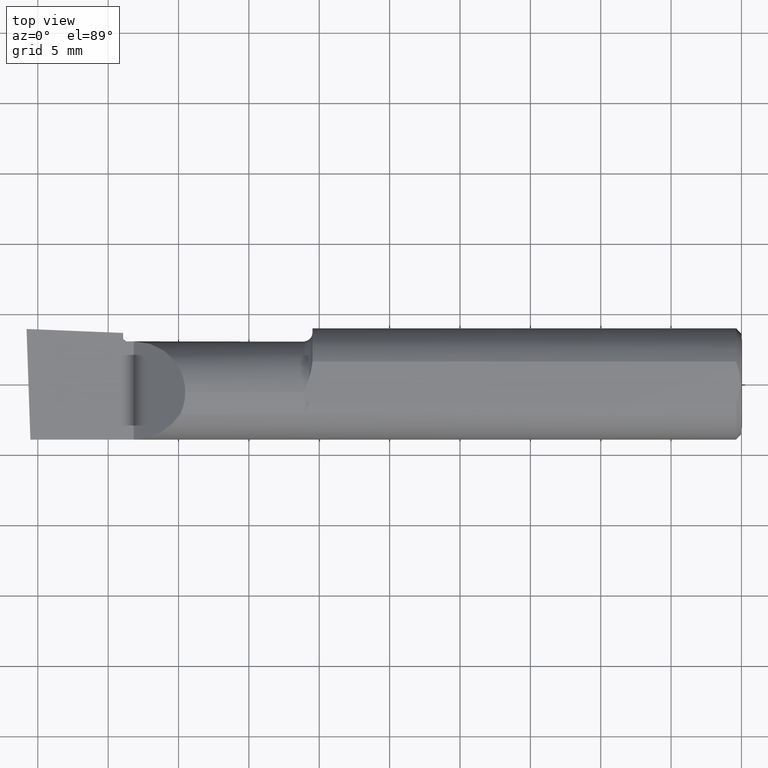
[diagram: clean part render]
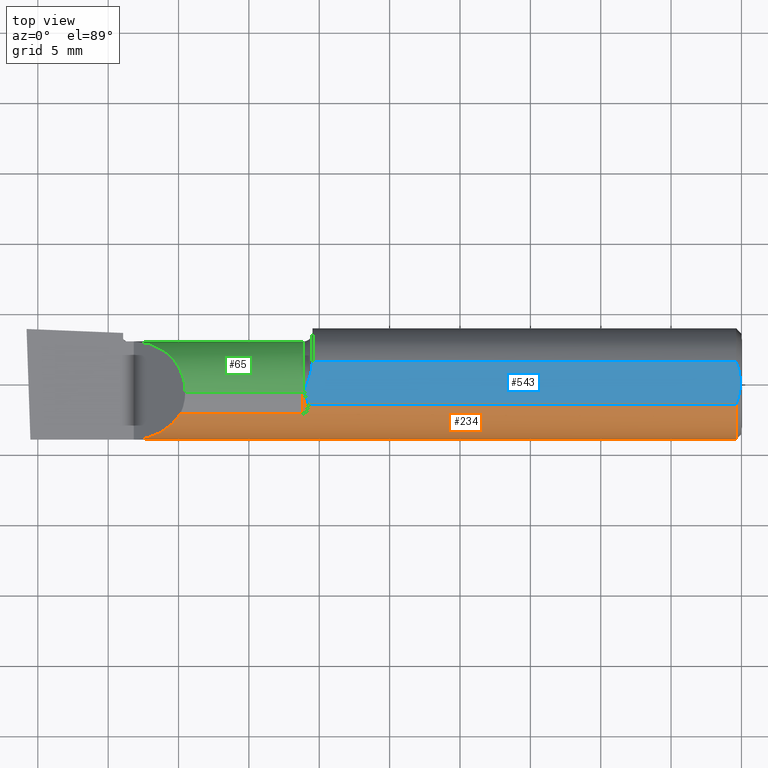
[diagram: same view with three faces highlighted in distinct colors, each labeled with its STEP entity id]
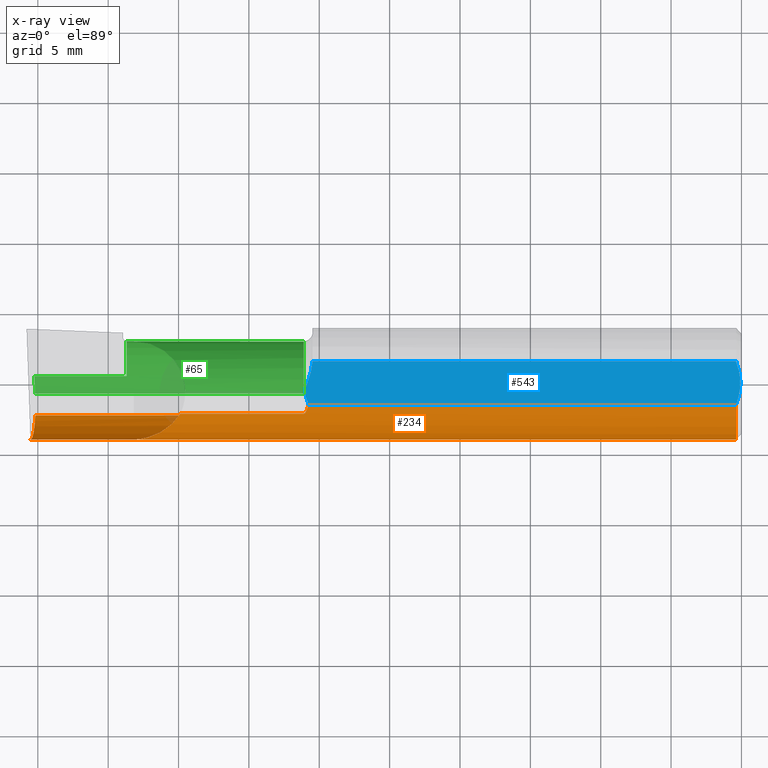
[diagram: x-ray of the same camera — body ghosted, the three highlighted faces saturated]
A machine part, top view with three faces highlighted in distinct colors.
The next image is the same camera in x-ray (body ghosted, the three faces saturated) — at least one of them is partly hidden behind the body in this view.
Their STEP definitions:

[orange] entity #234 — the highlighted cylindrical surface (partial cylindrical patch) has radius 3.9649 mm, axis along (1, -0, -0).
#1 = VERTEX_POINT ( 'NONE', #161 ) ;
#7 = EDGE_CURVE ( 'NONE', #64, #1, #43, .T. ) ;
#10 = CARTESIAN_POINT ( 'NONE',  ( -0.01500000000000024925, 0.000000000000000000, 0.000000000000000000 ) ) ;
#12 = CARTESIAN_POINT ( 'NONE',  ( -1.989266190342418916, -0.1561000000000000165, 3.826894855694925850E-18 ) ) ;
#19 = CIRCLE ( 'NONE', #114, 0.1560999999999999888 ) ;
#31 = CARTESIAN_POINT ( 'NONE',  ( -1.977743596163801021, -0.1305938407426050218, -0.1009826174484538680 ) ) ;
#38 =( BOUNDED_CURVE ( )  B_SPLINE_CURVE ( 3, ( #12, #472, #31, #329 ),
 .UNSPECIFIED., .F., .T. ) 
 B_SPLINE_CURVE_WITH_KNOTS ( ( 4, 4 ),
 ( 4.987330662103038215, 5.976951217326482713 ),
 .UNSPECIFIED. ) 
 CURVE ( )  GEOMETRIC_REPRESENTATION_ITEM ( )  RATIONAL_B_SPLINE_CURVE ( ( 1.000000000000000000, 0.9200392120919973493, 0.9200392120919973493, 1.000000000000000000 ) ) 
 REPRESENTATION_ITEM ( '' )  );
#41 = CARTESIAN_POINT ( 'NONE',  ( -1.219310887745682415, -0.08198244806377583127, -0.1328448627315362007 ) ) ;
#43 = B_SPLINE_CURVE_WITH_KNOTS ( 'NONE', 3,
 ( #498, #396, #85, #324, #41, #665, #157, #290, #621, #174, #577, #233 ),
 .UNSPECIFIED., .F., .F.,
 ( 4, 2, 2, 2, 2, 4 ),
 ( 1.966861314596262993E-07, 0.0001139043861855364159, 0.0002276120862396131903, 0.0004550274863477684196, 0.0009098582865640782820, 0.001819519886996695621 ),
 .UNSPECIFIED. ) ;
#48 = VERTEX_POINT ( 'NONE', #165 ) ;
#56 = AXIS2_PLACEMENT_3D ( 'NONE', #245, #539, #592 ) ;
#57 = VECTOR ( 'NONE', #340, 39.37007874015748143 ) ;
#64 = VERTEX_POINT ( 'NONE', #624 ) ;
#71 = EDGE_LOOP ( 'NONE', ( #376, #611, #330, #710, #335, #385, #166, #228, #291, #615, #159 ) ) ;
#76 = CARTESIAN_POINT ( 'NONE',  ( -1.224999999999999867, -0.08569999999999945717, 0.1304711462354803397 ) ) ;
#77 = CARTESIAN_POINT ( 'NONE',  ( -1.989266190342418916, -0.1561000000000000165, 3.826894855694925850E-18 ) ) ;
#79 = CARTESIAN_POINT ( 'NONE',  ( -1.220308733175471394, -0.08325729668116119142, 0.1320471792325036975 ) ) ;
#85 = CARTESIAN_POINT ( 'NONE',  ( -1.222162220462625459, -0.08489276752862864872, -0.1310023188550718254 ) ) ;
#93 = CARTESIAN_POINT ( 'NONE',  ( -0.01500000000000024925, -0.06001999666777732556, 0.1440999999999999781 ) ) ;
#109 = DIRECTION ( 'NONE',  ( 0.000000000000000000, 0.000000000000000000, 1.000000000000000000 ) ) ;
#113 = CARTESIAN_POINT ( 'NONE',  ( -1.556000000000000050, -0.1560999999999999888, 3.826894855694925850E-18 ) ) ;
#114 = AXIS2_PLACEMENT_3D ( 'NONE', #10, #516, #109 ) ;
#115 =( BOUNDED_CURVE ( )  B_SPLINE_CURVE ( 3, ( #719, #383, #434, #654 ),
 .UNSPECIFIED., .F., .T. ) 
 B_SPLINE_CURVE_WITH_KNOTS ( ( 4, 4 ),
 ( 0.5811757715714150896, 1.570796326794896558 ),
 .UNSPECIFIED. ) 
 CURVE ( )  GEOMETRIC_REPRESENTATION_ITEM ( )  RATIONAL_B_SPLINE_CURVE ( ( 1.000000000000000000, 0.9200392120919915762, 0.9200392120919915762, 1.000000000000000000 ) ) 
 REPRESENTATION_ITEM ( '' )  );
#129 = CARTESIAN_POINT ( 'NONE',  ( -1.210843495424060334, -0.06001999666777309977, 0.1440999999999999504 ) ) ;
#133 = CARTESIAN_POINT ( 'NONE',  ( -1.203095797791018828, -0.008405471570478703636, -0.1561000000000260235 ) ) ;
#139 = CARTESIAN_POINT ( 'NONE',  ( -1.210843495424060334, -0.06001999666777309977, 0.1440999999999999504 ) ) ;
#140 = EDGE_CURVE ( 'NONE', #1, #532, #158, .T. ) ;
#142 = VERTEX_POINT ( 'NONE', #588 ) ;
#153 = DIRECTION ( 'NONE',  ( -1.000000000000000000, 0.000000000000000000, 0.000000000000000000 ) ) ;
#157 = CARTESIAN_POINT ( 'NONE',  ( -1.216062054560814065, -0.07627963852233830833, -0.1362221433799750137 ) ) ;
#158 = B_SPLINE_CURVE_WITH_KNOTS ( 'NONE', 3,
 ( #240, #582, #133, #300 ),
 .UNSPECIFIED., .F., .F.,
 ( 4, 4 ),
 ( 0.001819519886996695621, 0.002475127250578799606 ),
 .UNSPECIFIED. ) ;
#159 = ORIENTED_EDGE ( 'NONE', *, *, #540, .T. ) ;
#161 = CARTESIAN_POINT ( 'NONE',  ( -1.204862523376329708, -0.02500000000022616423, -0.1540850739039595629 ) ) ;
#165 = CARTESIAN_POINT ( 'NONE',  ( -1.699999999999999289, -0.1560999999999999888, 3.826894855694925850E-18 ) ) ;
#166 = ORIENTED_EDGE ( 'NONE', *, *, #328, .T. ) ;
#167 = DIRECTION ( 'NONE',  ( -1.000000000000000000, -0.000000000000000000, -0.000000000000000000 ) ) ;
#174 = CARTESIAN_POINT ( 'NONE',  ( -1.207963511987622862, -0.04781653154435669406, -0.1490354188630817756 ) ) ;
#179 = VECTOR ( 'NONE', #153, 39.37007874015748143 ) ;
#190 = CARTESIAN_POINT ( 'NONE',  ( -1.223558490372086416, -0.08570000000287456010, 0.1304711462335920724 ) ) ;
#198 = CARTESIAN_POINT ( 'NONE',  ( -1.472499999999999698, -0.08569999999999981799, 0.1304711462354800622 ) ) ;
#201 = VERTEX_POINT ( 'NONE', #129 ) ;
#228 = ORIENTED_EDGE ( 'NONE', *, *, #351, .T. ) ;
#233 = CARTESIAN_POINT ( 'NONE',  ( -1.204862523376329708, -0.02500000000022616423, -0.1540850739039595629 ) ) ;
#234 = ADVANCED_FACE ( 'NONE', ( #541 ), #303, .T. ) ;
#239 = VERTEX_POINT ( 'NONE', #77 ) ;
#240 = CARTESIAN_POINT ( 'NONE',  ( -1.204862523376329708, -0.02500000000022616423, -0.1540850739039595629 ) ) ;
#245 = CARTESIAN_POINT ( 'NONE',  ( -2.000000000000000000, 0.000000000000000000, 0.000000000000000000 ) ) ;
#246 = CARTESIAN_POINT ( 'NONE',  ( -1.217376702052392234, -0.07908290169519976986, 0.1346075232099597230 ) ) ;
#253 = EDGE_CURVE ( 'NONE', #239, #142, #38, .T. ) ;
#254 = CARTESIAN_POINT ( 'NONE',  ( -1.212083001804619808, -0.06507129184707168001, 0.1419960532975073630 ) ) ;
#272 = VERTEX_POINT ( 'NONE', #547 ) ;
#290 = CARTESIAN_POINT ( 'NONE',  ( -1.213126895908789082, -0.06887538526317453502, -0.1401954838979543039 ) ) ;
#291 = ORIENTED_EDGE ( 'NONE', *, *, #466, .T. ) ;
#300 = CARTESIAN_POINT ( 'NONE',  ( -1.202458313762935216, 4.839806556636975714E-13, -0.1560999999999999888 ) ) ;
#303 = CYLINDRICAL_SURFACE ( 'NONE', #56, 0.1560999999999999888 ) ;
#307 = B_SPLINE_CURVE_WITH_KNOTS ( 'NONE', 3,
 ( #139, #254, #646, #594, #246, #424, #79, #701, #190, #76 ),
 .UNSPECIFIED., .F., .F.,
 ( 4, 2, 2, 2, 4 ),
 ( 5.292347910191260537E-07, 0.0004247077115782368971, 0.0006367969499718471914, 0.0007428415691686544257, 0.0008488861883654617684 ),
 .UNSPECIFIED. ) ;
#312 = LINE ( 'NONE', #556, #336 ) ;
#320 = DIRECTION ( 'NONE',  ( -1.000000000000000000, 0.000000000000000000, 0.000000000000000000 ) ) ;
#323 = CARTESIAN_POINT ( 'NONE',  ( -2.000000000000000000, -0.06001999666777736719, 0.1440999999999999504 ) ) ;
#324 = CARTESIAN_POINT ( 'NONE',  ( -1.220128093538974667, -0.08306175160951267955, -0.1321708551218282179 ) ) ;
#328 = EDGE_CURVE ( 'NONE', #740, #272, #606, .T. ) ;
#329 = CARTESIAN_POINT ( 'NONE',  ( -1.975676552398976993, -0.08569999999999981799, -0.1304711462354800622 ) ) ;
#330 = ORIENTED_EDGE ( 'NONE', *, *, #408, .T. ) ;
#335 = ORIENTED_EDGE ( 'NONE', *, *, #374, .T. ) ;
#336 = VECTOR ( 'NONE', #723, 39.37007874015748143 ) ;
#340 = DIRECTION ( 'NONE',  ( 1.000000000000000000, -0.000000000000000000, -0.000000000000000000 ) ) ;
#351 = EDGE_CURVE ( 'NONE', #272, #48, #115, .T. ) ;
#352 = VERTEX_POINT ( 'NONE', #93 ) ;
#368 = CARTESIAN_POINT ( 'NONE',  ( -1.224999999999999867, -0.08569999999999945717, 0.1304711462354803397 ) ) ;
#371 = VECTOR ( 'NONE', #320, 39.37007874015748143 ) ;
#374 = EDGE_CURVE ( 'NONE', #352, #201, #378, .T. ) ;
#376 = ORIENTED_EDGE ( 'NONE', *, *, #7, .T. ) ;
#378 = LINE ( 'NONE', #323, #371 ) ;
#383 = CARTESIAN_POINT ( 'NONE',  ( -1.599017382551542799, -0.1305938407426030234, 0.1009826174484575595 ) ) ;
#385 = ORIENTED_EDGE ( 'NONE', *, *, #748, .T. ) ;
#396 = CARTESIAN_POINT ( 'NONE',  ( -1.223482932671292378, -0.08569999999999960982, -0.1304711462354802010 ) ) ;
#408 = EDGE_CURVE ( 'NONE', #532, #500, #312, .T. ) ;
#424 = CARTESIAN_POINT ( 'NONE',  ( -1.219508261956889328, -0.08224208440130478803, 0.1326837206089796772 ) ) ;
#434 = CARTESIAN_POINT ( 'NONE',  ( -1.646287522244398893, -0.1560999999999999888, 0.05371247775560067383 ) ) ;
#447 = LINE ( 'NONE', #564, #57 ) ;
#450 = CARTESIAN_POINT ( 'NONE',  ( -1.202458313762935216, 4.839806556636975714E-13, -0.1560999999999999888 ) ) ;
#466 = EDGE_CURVE ( 'NONE', #48, #239, #668, .T. ) ;
#472 = CARTESIAN_POINT ( 'NONE',  ( -1.982667168175672234, -0.1561000000000000443, -0.05371247775559846033 ) ) ;
#498 = CARTESIAN_POINT ( 'NONE',  ( -1.224999999999999867, -0.08569999999999941553, -0.1304711462354803397 ) ) ;
#500 = VERTEX_POINT ( 'NONE', #741 ) ;
#516 = DIRECTION ( 'NONE',  ( -1.000000000000000000, 0.000000000000000000, 0.000000000000000000 ) ) ;
#532 = VERTEX_POINT ( 'NONE', #450 ) ;
#539 = DIRECTION ( 'NONE',  ( 1.000000000000000000, -0.000000000000000000, -0.000000000000000000 ) ) ;
#540 = EDGE_CURVE ( 'NONE', #142, #64, #447, .T. ) ;
#541 = FACE_OUTER_BOUND ( 'NONE', #71, .T. ) ;
#547 = CARTESIAN_POINT ( 'NONE',  ( -1.569528853764517340, -0.08569999999999478035, 0.1304711462354828655 ) ) ;
#556 = CARTESIAN_POINT ( 'NONE',  ( -2.000000000000000000, 0.000000000000000000, -0.1560999999999999888 ) ) ;
#564 = CARTESIAN_POINT ( 'NONE',  ( -1.472499999999999698, -0.08569999999999981799, -0.1304711462354800622 ) ) ;
#577 = CARTESIAN_POINT ( 'NONE',  ( -1.206230440715365226, -0.03646003586407854657, -0.1522257056384942742 ) ) ;
#582 = CARTESIAN_POINT ( 'NONE',  ( -1.203876643924216117, -0.01674057265308582024, -0.1554251497364122214 ) ) ;
#588 = CARTESIAN_POINT ( 'NONE',  ( -1.975676552398976993, -0.08569999999999981799, -0.1304711462354800622 ) ) ;
#592 = DIRECTION ( 'NONE',  ( 0.000000000000000000, 0.000000000000000000, -1.000000000000000000 ) ) ;
#594 = CARTESIAN_POINT ( 'NONE',  ( -1.216324726609743667, -0.07684337455390510829, 0.1359013108991525831 ) ) ;
#605 = VECTOR ( 'NONE', #167, 39.37007874015748143 ) ;
#606 = LINE ( 'NONE', #198, #179 ) ;
#609 = EDGE_CURVE ( 'NONE', #500, #352, #19, .T. ) ;
#611 = ORIENTED_EDGE ( 'NONE', *, *, #140, .T. ) ;
#615 = ORIENTED_EDGE ( 'NONE', *, *, #253, .T. ) ;
#621 = CARTESIAN_POINT ( 'NONE',  ( -1.211707069840810114, -0.06372296352525430585, -0.1426158673174760805 ) ) ;
#624 = CARTESIAN_POINT ( 'NONE',  ( -1.224999999999999867, -0.08569999999999941553, -0.1304711462354803397 ) ) ;
#646 = CARTESIAN_POINT ( 'NONE',  ( -1.213486186723762739, -0.06993940022577686821, 0.1396536156489261993 ) ) ;
#654 = CARTESIAN_POINT ( 'NONE',  ( -1.699999999999999289, -0.1560999999999999888, 3.826894855694925850E-18 ) ) ;
#665 = CARTESIAN_POINT ( 'NONE',  ( -1.217151728812752687, -0.07866717671370133946, -0.1348531152278539813 ) ) ;
#668 = LINE ( 'NONE', #113, #605 ) ;
#701 = CARTESIAN_POINT ( 'NONE',  ( -1.222282960142827335, -0.08496306084893966160, 0.1309561502377617481 ) ) ;
#710 = ORIENTED_EDGE ( 'NONE', *, *, #609, .T. ) ;
#719 = CARTESIAN_POINT ( 'NONE',  ( -1.569528853764517340, -0.08569999999999478035, 0.1304711462354828655 ) ) ;
#723 = DIRECTION ( 'NONE',  ( 1.000000000000000000, -0.000000000000000000, -0.000000000000000000 ) ) ;
#740 = VERTEX_POINT ( 'NONE', #368 ) ;
#741 = CARTESIAN_POINT ( 'NONE',  ( -0.01500000000000024925, 0.000000000000000000, -0.1560999999999999888 ) ) ;
#748 = EDGE_CURVE ( 'NONE', #201, #740, #307, .T. ) ;

[blue] entity #543 — the highlighted planar face has unit normal (0, 0, 1).
#8 = CARTESIAN_POINT ( 'NONE',  ( -0.003000000000000205194, 0.01020794464685660825, 0.1440999999999999781 ) ) ;
#24 = ORIENTED_EDGE ( 'NONE', *, *, #75, .T. ) ;
#40 = CARTESIAN_POINT ( 'NONE',  ( -0.003000000000000204760, 6.421145895685612357E-21, 0.1440999999999999504 ) ) ;
#44 = CARTESIAN_POINT ( 'NONE',  ( -0.003000000000000204760, 6.421145895685612357E-21, 0.1440999999999999504 ) ) ;
#53 = CARTESIAN_POINT ( 'NONE',  ( -1.212837095251398045, -0.05422015848554274237, 0.1440999999999999781 ) ) ;
#55 = CARTESIAN_POINT ( 'NONE',  ( -1.221844053232376659, -0.02500000000003146580, 0.1440999999999999504 ) ) ;
#75 = EDGE_CURVE ( 'NONE', #468, #201, #84, .T. ) ;
#84 = B_SPLINE_CURVE_WITH_KNOTS ( 'NONE', 3,
 ( #526, #515, #402, #461, #688, #112, #53, #738 ),
 .UNSPECIFIED., .F., .F.,
 ( 4, 2, 2, 4 ),
 ( 0.0006785821176393270473, 0.0009116715494801349694, 0.001144760981320943000, 0.001610939845002559495 ),
 .UNSPECIFIED. ) ;
#93 = CARTESIAN_POINT ( 'NONE',  ( -0.01500000000000024925, -0.06001999666777732556, 0.1440999999999999781 ) ) ;
#101 = EDGE_CURVE ( 'NONE', #660, #295, #689, .T. ) ;
#105 = CARTESIAN_POINT ( 'NONE',  ( -0.01132650618349836762, 0.05046597439866586793, 0.1440999999999999781 ) ) ;
#112 = CARTESIAN_POINT ( 'NONE',  ( -1.214985600317322278, -0.04846509284843829313, 0.1440999999999999504 ) ) ;
#129 = CARTESIAN_POINT ( 'NONE',  ( -1.210843495424060334, -0.06001999666777309977, 0.1440999999999999504 ) ) ;
#135 = CARTESIAN_POINT ( 'NONE',  ( -1.221844053232386651, -0.02136326841098645443, 0.1440999999999999781 ) ) ;
#137 = CARTESIAN_POINT ( 'NONE',  ( -1.213353959584569930, 0.002866311517163350631, 0.1440999999999999504 ) ) ;
#169 = CARTESIAN_POINT ( 'NONE',  ( -0.01133355301893011931, -0.05048430180739575668, 0.1440999999999999781 ) ) ;
#189 = DIRECTION ( 'NONE',  ( 1.000000000000000000, 0.000000000000000000, -0.000000000000000000 ) ) ;
#201 = VERTEX_POINT ( 'NONE', #129 ) ;
#215 = EDGE_CURVE ( 'NONE', #410, #468, #458, .T. ) ;
#220 = FACE_OUTER_BOUND ( 'NONE', #429, .T. ) ;
#229 = CARTESIAN_POINT ( 'NONE',  ( -0.01500000000000024925, -0.06001999666777732556, 0.1440999999999999781 ) ) ;
#242 = CARTESIAN_POINT ( 'NONE',  ( 2.000000000000000000, 0.06250000000000000000, 0.1440999999999999504 ) ) ;
#255 = CARTESIAN_POINT ( 'NONE',  ( -1.221844053232376659, -0.02500000000003146580, 0.1440999999999999504 ) ) ;
#275 = CARTESIAN_POINT ( 'NONE',  ( -0.003000000000000203892, -0.01021764673483457724, 0.1440999999999999781 ) ) ;
#295 = VERTEX_POINT ( 'NONE', #40 ) ;
#308 = CARTESIAN_POINT ( 'NONE',  ( -1.218418672230969113, -0.01083899323586103892, 0.1440999999999999781 ) ) ;
#316 = CARTESIAN_POINT ( 'NONE',  ( -1.200050504025077291, 0.06001999666777733250, 0.1440999999999999504 ) ) ;
#318 = AXIS2_PLACEMENT_3D ( 'NONE', #242, #423, #189 ) ;
#320 = DIRECTION ( 'NONE',  ( -1.000000000000000000, 0.000000000000000000, 0.000000000000000000 ) ) ;
#323 = CARTESIAN_POINT ( 'NONE',  ( -2.000000000000000000, -0.06001999666777736719, 0.1440999999999999504 ) ) ;
#350 = CARTESIAN_POINT ( 'NONE',  ( -2.000000000000000000, 0.06001999666777736719, 0.1440999999999999504 ) ) ;
#352 = VERTEX_POINT ( 'NONE', #93 ) ;
#371 = VECTOR ( 'NONE', #320, 39.37007874015748143 ) ;
#374 = EDGE_CURVE ( 'NONE', #352, #201, #378, .T. ) ;
#378 = LINE ( 'NONE', #323, #371 ) ;
#402 = CARTESIAN_POINT ( 'NONE',  ( -1.221036826405246245, -0.03107590170041930194, 0.1440999999999999781 ) ) ;
#405 = CARTESIAN_POINT ( 'NONE',  ( -0.004112937275917732775, 0.02048434576366622156, 0.1440999999999999226 ) ) ;
#409 = LINE ( 'NONE', #350, #546 ) ;
#410 = VERTEX_POINT ( 'NONE', #316 ) ;
#412 = CARTESIAN_POINT ( 'NONE',  ( -1.204082834115635547, 0.03088512097719125701, 0.1440999999999999781 ) ) ;
#413 = DIRECTION ( 'NONE',  ( 1.000000000000000000, -0.000000000000000000, -0.000000000000000000 ) ) ;
#422 = CARTESIAN_POINT ( 'NONE',  ( -1.210816084744946730, 0.009840729273029055410, 0.1440999999999999781 ) ) ;
#423 = DIRECTION ( 'NONE',  ( 0.000000000000000000, 0.000000000000000000, 1.000000000000000000 ) ) ;
#425 = EDGE_CURVE ( 'NONE', #295, #352, #573, .T. ) ;
#429 = EDGE_LOOP ( 'NONE', ( #544, #558, #24, #630, #454, #563 ) ) ;
#451 = CARTESIAN_POINT ( 'NONE',  ( -0.01500000000000023884, 0.06001999666777732556, 0.1440999999999999504 ) ) ;
#454 = ORIENTED_EDGE ( 'NONE', *, *, #425, .F. ) ;
#458 = B_SPLINE_CURVE_WITH_KNOTS ( 'NONE', 3,
 ( #475, #695, #412, #422, #137, #699, #308, #643, #135, #255 ),
 .UNSPECIFIED., .F., .F.,
 ( 4, 2, 2, 2, 4 ),
 ( 0.01301670781631581938, 0.01412932456335435488, 0.01468563293687362437, 0.01496378712363325911, 0.01524194131039289385 ),
 .UNSPECIFIED. ) ;
#461 = CARTESIAN_POINT ( 'NONE',  ( -1.219201185154610512, -0.03693468910894937701, 0.1440999999999999504 ) ) ;
#465 = CARTESIAN_POINT ( 'NONE',  ( -0.008307085287356189701, 0.04068523568973313881, 0.1441000000000000059 ) ) ;
#468 = VERTEX_POINT ( 'NONE', #55 ) ;
#475 = CARTESIAN_POINT ( 'NONE',  ( -1.200050504025077291, 0.06001999666777733250, 0.1440999999999999504 ) ) ;
#501 = CARTESIAN_POINT ( 'NONE',  ( -0.004121137220901559609, -0.02053748477038522605, 0.1441000000000000059 ) ) ;
#515 = CARTESIAN_POINT ( 'NONE',  ( -1.221844053232374439, -0.02804753169359755494, 0.1440999999999999781 ) ) ;
#526 = CARTESIAN_POINT ( 'NONE',  ( -1.221844053232376659, -0.02500000000003146580, 0.1440999999999999504 ) ) ;
#543 = ADVANCED_FACE ( 'NONE', ( #220 ), #746, .T. ) ;
#544 = ORIENTED_EDGE ( 'NONE', *, *, #642, .F. ) ;
#546 = VECTOR ( 'NONE', #413, 39.37007874015748143 ) ;
#558 = ORIENTED_EDGE ( 'NONE', *, *, #215, .T. ) ;
#563 = ORIENTED_EDGE ( 'NONE', *, *, #101, .F. ) ;
#573 = B_SPLINE_CURVE_WITH_KNOTS ( 'NONE', 3,
 ( #44, #275, #501, #647, #169, #229 ),
 .UNSPECIFIED., .F., .F.,
 ( 4, 2, 4 ),
 ( 0.005420603660124381773, 0.006200393792043773673, 0.006980183923963165574 ),
 .UNSPECIFIED. ) ;
#590 = CARTESIAN_POINT ( 'NONE',  ( -0.01500000000000023884, 0.06001999666777732556, 0.1440999999999999504 ) ) ;
#629 = CARTESIAN_POINT ( 'NONE',  ( -0.003000000000000204760, 6.421145895685612357E-21, 0.1440999999999999504 ) ) ;
#630 = ORIENTED_EDGE ( 'NONE', *, *, #374, .F. ) ;
#642 = EDGE_CURVE ( 'NONE', #410, #660, #409, .T. ) ;
#643 = CARTESIAN_POINT ( 'NONE',  ( -1.220724021719191033, -0.01776615298045898517, 0.1441000000000000059 ) ) ;
#647 = CARTESIAN_POINT ( 'NONE',  ( -0.008316884378888314902, -0.04071872938164906863, 0.1440999999999999226 ) ) ;
#660 = VERTEX_POINT ( 'NONE', #590 ) ;
#688 = CARTESIAN_POINT ( 'NONE',  ( -1.218148277183320749, -0.03981762987256246694, 0.1440999999999999504 ) ) ;
#689 = B_SPLINE_CURVE_WITH_KNOTS ( 'NONE', 3,
 ( #451, #105, #465, #405, #8, #629 ),
 .UNSPECIFIED., .F., .F.,
 ( 4, 2, 4 ),
 ( 0.003862504283746397583, 0.004641553971935389461, 0.005420603660124381773 ),
 .UNSPECIFIED. ) ;
#695 = CARTESIAN_POINT ( 'NONE',  ( -1.200532541532474351, 0.04511886254872674029, 0.1441000000000000336 ) ) ;
#699 = CARTESIAN_POINT ( 'NONE',  ( -1.217139718007820282, -0.007416860360641703079, 0.1440999999999999781 ) ) ;
#738 = CARTESIAN_POINT ( 'NONE',  ( -1.210843495424060334, -0.06001999666777309977, 0.1440999999999999504 ) ) ;
#746 = PLANE ( 'NONE',  #318 ) ;

[green] entity #65 — the highlighted cylindrical surface (partial cylindrical patch) has radius 3.6551 mm, axis along (1, -0, -0).
#6 = EDGE_LOOP ( 'NONE', ( #236, #559, #581, #626, #584, #11, #518, #441 ) ) ;
#11 = ORIENTED_EDGE ( 'NONE', *, *, #192, .T. ) ;
#21 = CARTESIAN_POINT ( 'NONE',  ( -1.699999999999999289, 0.1188999999999999918, 3.826894855694925850E-18 ) ) ;
#28 = VERTEX_POINT ( 'NONE', #285 ) ;
#49 = VECTOR ( 'NONE', #259, 39.37007874015748143 ) ;
#65 = ADVANCED_FACE ( 'NONE', ( #675 ), #679, .T. ) ;
#74 = CARTESIAN_POINT ( 'NONE',  ( 0.000000000000000000, 0.1188999999999999918, 3.826894855694925850E-18 ) ) ;
#88 = CARTESIAN_POINT ( 'NONE',  ( -1.719999999999999751, 0.02421669862456291358, -0.1352217681310924902 ) ) ;
#107 = EDGE_CURVE ( 'NONE', #443, #555, #297, .T. ) ;
#116 = CARTESIAN_POINT ( 'NONE',  ( 0.000000000000000000, -0.02500000000000002220, -0.1439000000000000001 ) ) ;
#134 = EDGE_CURVE ( 'NONE', #640, #716, #349, .T. ) ;
#162 = AXIS2_PLACEMENT_3D ( 'NONE', #237, #469, #230 ) ;
#175 = CARTESIAN_POINT ( 'NONE',  ( -1.699999999999999289, 0.1188999999999999918, 3.826894855694925850E-18 ) ) ;
#177 = CARTESIAN_POINT ( 'NONE',  ( -1.976713598110543035, -0.008170903630063810347, -0.1439000000000000279 ) ) ;
#186 = CARTESIAN_POINT ( 'NONE',  ( -1.978902233428061486, 0.02421669862456291358, -0.1352217681310924902 ) ) ;
#192 = EDGE_CURVE ( 'NONE', #640, #561, #627, .T. ) ;
#193 = CARTESIAN_POINT ( 'NONE',  ( -1.556100000000000483, -0.02500000000000000486, 0.1439000000000000001 ) ) ;
#197 = DIRECTION ( 'NONE',  ( -1.000000000000000000, 0.000000000000000000, 0.000000000000000000 ) ) ;
#219 = AXIS2_PLACEMENT_3D ( 'NONE', #427, #197, #535 ) ;
#224 = VECTOR ( 'NONE', #288, 39.37007874015748143 ) ;
#230 = DIRECTION ( 'NONE',  ( 0.000000000000000000, 0.000000000000000000, 1.000000000000000000 ) ) ;
#236 = ORIENTED_EDGE ( 'NONE', *, *, #107, .F. ) ;
#237 = CARTESIAN_POINT ( 'NONE',  ( 0.000000000000000000, -0.02500000000000000486, 0.000000000000000000 ) ) ;
#247 = DIRECTION ( 'NONE',  ( -1.000000000000000000, 0.000000000000000000, 0.000000000000000000 ) ) ;
#259 = DIRECTION ( 'NONE',  ( 1.000000000000000000, 0.000000000000000000, 0.000000000000000000 ) ) ;
#283 = VERTEX_POINT ( 'NONE', #88 ) ;
#285 = CARTESIAN_POINT ( 'NONE',  ( -1.978902233428061486, 0.02421669862456291358, -0.1352217681310924902 ) ) ;
#288 = DIRECTION ( 'NONE',  ( 1.000000000000000000, -0.000000000000000000, -0.000000000000000000 ) ) ;
#293 = DIRECTION ( 'NONE',  ( 1.000000000000000000, -0.000000000000000000, -0.000000000000000000 ) ) ;
#297 = LINE ( 'NONE', #116, #674 ) ;
#305 = CARTESIAN_POINT ( 'NONE',  ( -1.615705331625488350, 0.1188999999999999918, 0.08429466837451159156 ) ) ;
#337 = CARTESIAN_POINT ( 'NONE',  ( -1.976130359589496344, -0.02500000000000002220, -0.1439000000000000001 ) ) ;
#344 = EDGE_CURVE ( 'NONE', #28, #283, #491, .T. ) ;
#349 = LINE ( 'NONE', #74, #604 ) ;
#361 = CARTESIAN_POINT ( 'NONE',  ( -1.224999999999999867, -0.02500000000000002220, -0.1439000000000000556 ) ) ;
#384 = EDGE_CURVE ( 'NONE', #435, #555, #566, .T. ) ;
#399 = LINE ( 'NONE', #575, #224 ) ;
#404 = CARTESIAN_POINT ( 'NONE',  ( -1.224999999999999867, -0.02500000000000000486, 0.1439000000000000556 ) ) ;
#415 = CARTESIAN_POINT ( 'NONE',  ( -1.556100000000000039, 0.05929466837451162486, 0.1439000000000000001 ) ) ;
#427 = CARTESIAN_POINT ( 'NONE',  ( -1.719999999999999751, -0.02500000000000000486, 0.000000000000000000 ) ) ;
#431 = DIRECTION ( 'NONE',  ( -1.000000000000000000, 0.000000000000000000, 0.000000000000000000 ) ) ;
#435 = VERTEX_POINT ( 'NONE', #404 ) ;
#441 = ORIENTED_EDGE ( 'NONE', *, *, #384, .T. ) ;
#442 = DIRECTION ( 'NONE',  ( 0.000000000000000000, 0.000000000000000000, 1.000000000000000000 ) ) ;
#443 = VERTEX_POINT ( 'NONE', #337 ) ;
#446 =( BOUNDED_CURVE ( )  B_SPLINE_CURVE ( 3, ( #737, #177, #694, #186 ),
 .UNSPECIFIED., .F., .T. ) 
 B_SPLINE_CURVE_WITH_KNOTS ( ( 4, 4 ),
 ( 0.2749416817183487072, 0.6240075321172090517 ),
 .UNSPECIFIED. ) 
 CURVE ( )  GEOMETRIC_REPRESENTATION_ITEM ( )  RATIONAL_B_SPLINE_CURVE ( ( 1.000000000000000000, 0.9898718353414723836, 0.9898718353414723836, 1.000000000000000000 ) ) 
 REPRESENTATION_ITEM ( '' )  );
#469 = DIRECTION ( 'NONE',  ( 1.000000000000000000, -0.000000000000000000, -0.000000000000000000 ) ) ;
#477 = CARTESIAN_POINT ( 'NONE',  ( -1.719999999999999751, 0.1188999999999999363, 3.826894855694925080E-18 ) ) ;
#480 = EDGE_CURVE ( 'NONE', #561, #435, #399, .T. ) ;
#491 = LINE ( 'NONE', #494, #49 ) ;
#494 = CARTESIAN_POINT ( 'NONE',  ( -2.000000000000000000, 0.02421669862456291358, -0.1352217681310924902 ) ) ;
#518 = ORIENTED_EDGE ( 'NONE', *, *, #480, .T. ) ;
#535 = DIRECTION ( 'NONE',  ( 0.000000000000000000, 0.000000000000000000, 1.000000000000000000 ) ) ;
#555 = VERTEX_POINT ( 'NONE', #361 ) ;
#559 = ORIENTED_EDGE ( 'NONE', *, *, #580, .T. ) ;
#561 = VERTEX_POINT ( 'NONE', #576 ) ;
#566 = CIRCLE ( 'NONE', #649, 0.1439000000000000556 ) ;
#575 = CARTESIAN_POINT ( 'NONE',  ( 0.000000000000000000, -0.02500000000000000486, 0.1439000000000000001 ) ) ;
#576 = CARTESIAN_POINT ( 'NONE',  ( -1.556100000000000483, -0.02500000000000000486, 0.1439000000000000001 ) ) ;
#580 = EDGE_CURVE ( 'NONE', #443, #28, #446, .T. ) ;
#581 = ORIENTED_EDGE ( 'NONE', *, *, #344, .T. ) ;
#584 = ORIENTED_EDGE ( 'NONE', *, *, #134, .F. ) ;
#601 = CARTESIAN_POINT ( 'NONE',  ( -1.224999999999999867, -0.02500000000000000486, 0.000000000000000000 ) ) ;
#604 = VECTOR ( 'NONE', #247, 39.37007874015748143 ) ;
#626 = ORIENTED_EDGE ( 'NONE', *, *, #726, .F. ) ;
#627 =( BOUNDED_CURVE ( )  B_SPLINE_CURVE ( 3, ( #21, #305, #415, #193 ),
 .UNSPECIFIED., .F., .T. ) 
 B_SPLINE_CURVE_WITH_KNOTS ( ( 4, 4 ),
 ( 4.712388980384689674, 6.283185307179586232 ),
 .UNSPECIFIED. ) 
 CURVE ( )  GEOMETRIC_REPRESENTATION_ITEM ( )  RATIONAL_B_SPLINE_CURVE ( ( 1.000000000000000000, 0.8047378541243649375, 0.8047378541243649375, 1.000000000000000000 ) ) 
 REPRESENTATION_ITEM ( '' )  );
#640 = VERTEX_POINT ( 'NONE', #175 ) ;
#649 = AXIS2_PLACEMENT_3D ( 'NONE', #601, #431, #442 ) ;
#674 = VECTOR ( 'NONE', #293, 39.37007874015748143 ) ;
#675 = FACE_OUTER_BOUND ( 'NONE', #6, .T. ) ;
#679 = CYLINDRICAL_SURFACE ( 'NONE', #162, 0.1439000000000000001 ) ;
#694 = CARTESIAN_POINT ( 'NONE',  ( -1.977647009804057054, 0.008402520951238974870, -0.1409776580835794546 ) ) ;
#716 = VERTEX_POINT ( 'NONE', #477 ) ;
#726 = EDGE_CURVE ( 'NONE', #716, #283, #736, .T. ) ;
#736 = CIRCLE ( 'NONE', #219, 0.1438999999999999446 ) ;
#737 = CARTESIAN_POINT ( 'NONE',  ( -1.976130359589496344, -0.02500000000000002220, -0.1439000000000000001 ) ) ;